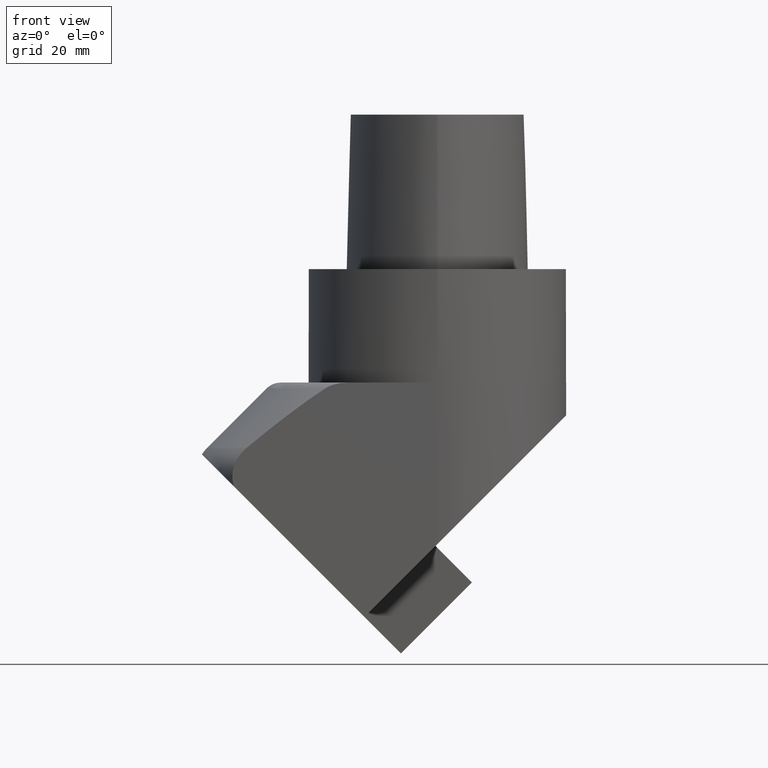
[diagram: clean part render]
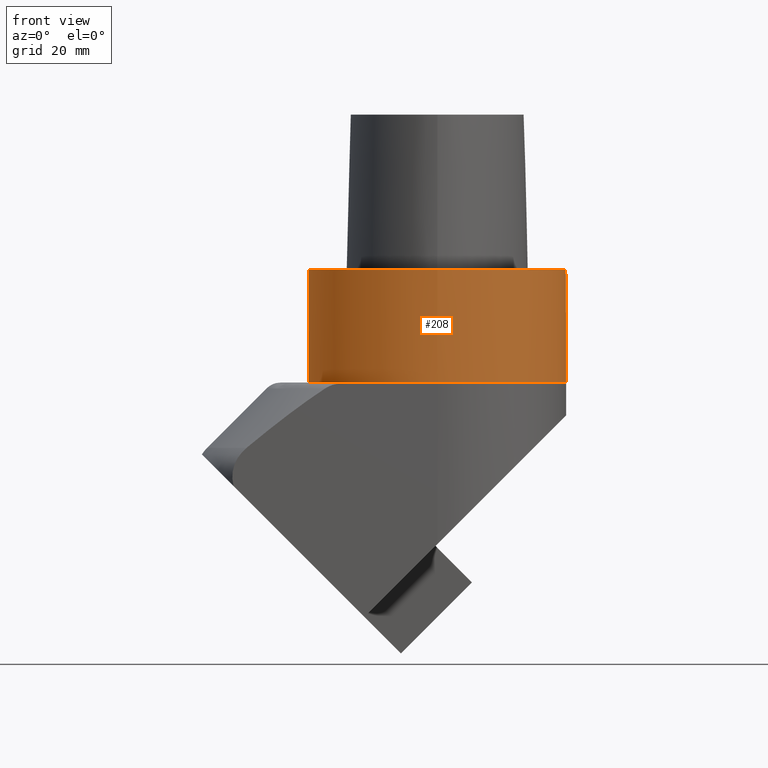
[diagram: same view with one face highlighted and labeled with its STEP entity id]
A machine part, front view. The second image highlights one B-rep face of the part: STEP entity #208.
In plain terms, the highlighted cylindrical surface (bore or boss wall) has radius 24.99 mm, axis along (0, -0, -1).
Its self-contained STEP definition (entity closure, byte-faithful):
#184=EDGE_CURVE('240[2]',#455,#455,#456,.T.);
#208=ADVANCED_FACE('240[2]',(#489,#490),#491,.T.);
#291=EDGE_CURVE('240[2]',#592,#592,#593,.T.);
#455=VERTEX_POINT('',#957);
#456=CIRCLE('',#958,24.9899999999972);
#489=FACE_BOUND('',#1013,.T.);
#490=FACE_BOUND('',#1014,.T.);
#491=CYLINDRICAL_SURFACE('',#1015,24.9899999999971);
#592=VERTEX_POINT('',#1257);
#593=CIRCLE('',#1258,24.9899999999971);
#957=CARTESIAN_POINT('',(4.40750382946244E-015,-24.9899999999971,-21.999999989082));
#958=AXIS2_PLACEMENT_3D('',#1850,#1851,#1852);
#1013=EDGE_LOOP('',(#1893));
#1014=EDGE_LOOP('',(#1894));
#1015=AXIS2_PLACEMENT_3D('',#1895,#1896,#1897);
#1257=CARTESIAN_POINT('',(3.06039235106889E-015,-24.9899999999971,-4.9397645561939E-014));
#1258=AXIS2_PLACEMENT_3D('',#2033,#2034,#2035);
#1850=CARTESIAN_POINT('',(1.34711147839355E-015,4.15277125529693E-014,-21.999999989082));
#1851=DIRECTION('',(0.0,0.0,1.0));
#1852=DIRECTION('',(0.0,-1.0,0.0));
#1893=ORIENTED_EDGE('',*,*,#184,.T.);
#1894=ORIENTED_EDGE('',*,*,#291,.F.);
#1895=CARTESIAN_POINT('',(6.73555739196773E-016,2.07638562764847E-014,-10.999999994541));
#1896=DIRECTION('',(0.0,-0.0,-1.0));
#1897=DIRECTION('',(0.0,-1.0,0.0));
#2033=CARTESIAN_POINT('',(0.0,0.0,0.0));
#2034=DIRECTION('',(0.0,0.0,1.0));
#2035=DIRECTION('',(0.0,-1.0,0.0));